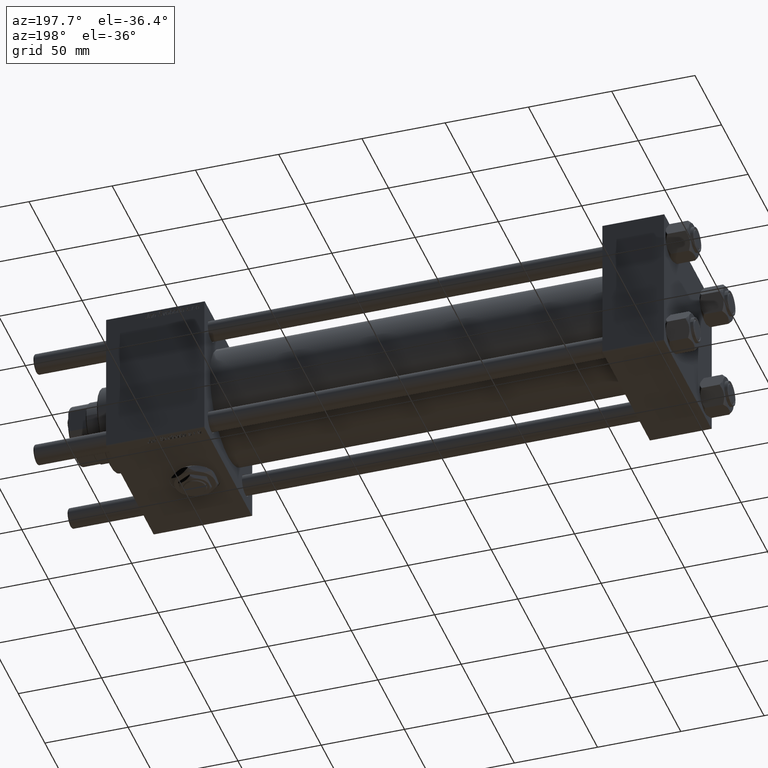
[diagram: clean part render]
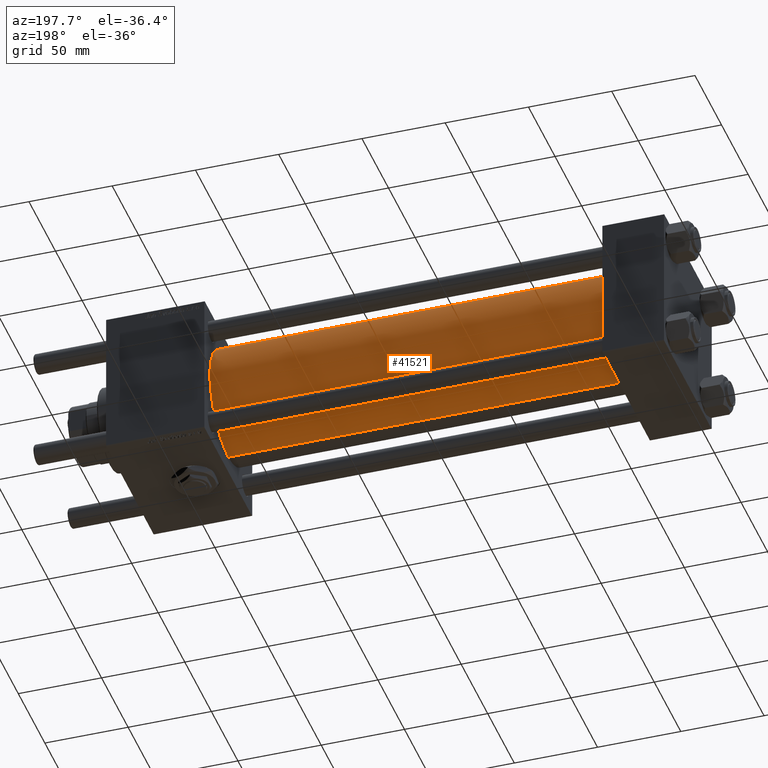
[diagram: same view with one face highlighted and labeled with its STEP entity id]
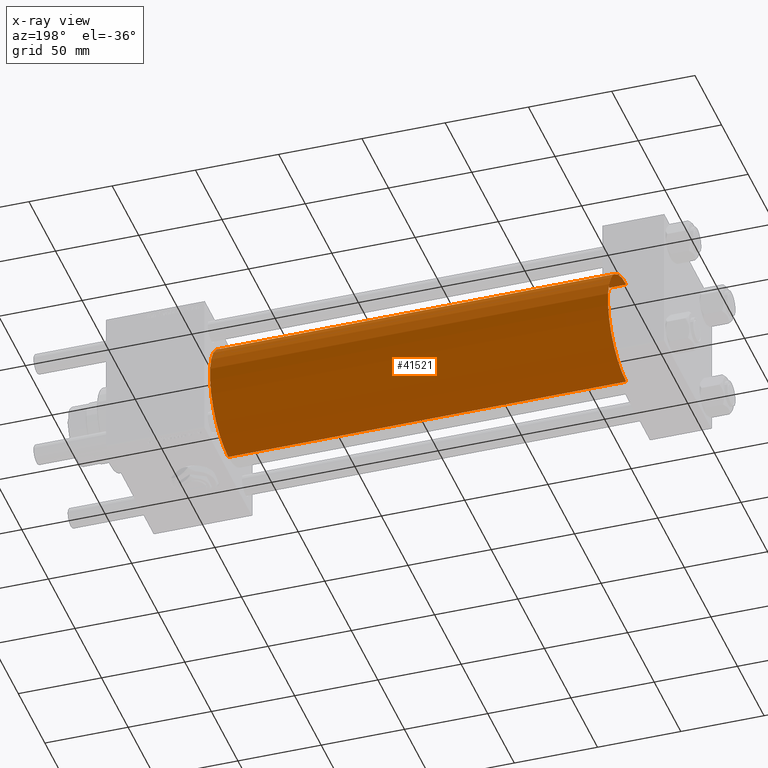
[diagram: x-ray of the same camera — body ghosted, the highlighted face saturated]
A machine part, auxiliary view. The second image highlights one B-rep face of the part: STEP entity #41521.
The next image is the same camera in x-ray: the body ghosted, the highlighted face saturated — about 0% of this face is hidden behind the body in this view.
In plain terms, the highlighted cylindrical surface (partial cylindrical patch) has radius 34.5 mm, axis along (-1, -0, -0).
Its self-contained STEP definition (entity closure, byte-faithful):
#1822 = DIRECTION ( 'NONE',  ( 1.000000000000000000, -0.000000000000000000, 0.000000000000000000 ) ) ;
#3940 = CARTESIAN_POINT ( 'NONE',  ( 275.9999999999999432, -2.602085213965210642E-15, 0.000000000000000000 ) ) ;
#4538 = CARTESIAN_POINT ( 'NONE',  ( 37.00000000000000711, -2.602085213965210642E-15, 34.50000000000000000 ) ) ;
#6390 = VERTEX_POINT ( 'NONE', #4538 ) ;
#6844 = DIRECTION ( 'NONE',  ( 0.000000000000000000, 0.000000000000000000, 1.000000000000000000 ) ) ;
#7107 = ORIENTED_EDGE ( 'NONE', *, *, #19306, .F. ) ;
#10932 = CARTESIAN_POINT ( 'NONE',  ( 37.00000000000000711, 1.622946243093157097E-15, -34.50000000000000000 ) ) ;
#13718 = VERTEX_POINT ( 'NONE', #24622 ) ;
#14596 = CARTESIAN_POINT ( 'NONE',  ( 275.9999999999999432, 1.622946243093157097E-15, -34.50000000000000000 ) ) ;
#14865 = EDGE_LOOP ( 'NONE', ( #30586, #35878, #46920, #7107 ) ) ;
#15215 = AXIS2_PLACEMENT_3D ( 'NONE', #43966, #30657, #44852 ) ;
#18124 = DIRECTION ( 'NONE',  ( -1.000000000000000000, -0.000000000000000000, -0.000000000000000000 ) ) ;
#19040 = DIRECTION ( 'NONE',  ( -1.000000000000000000, -0.000000000000000000, -0.000000000000000000 ) ) ;
#19306 = EDGE_CURVE ( 'NONE', #13718, #6390, #21239, .T. ) ;
#20244 = EDGE_CURVE ( 'NONE', #24314, #13718, #51077, .T. ) ;
#21239 = LINE ( 'NONE', #57286, #38662 ) ;
#24314 = VERTEX_POINT ( 'NONE', #31020 ) ;
#24622 = CARTESIAN_POINT ( 'NONE',  ( 275.9999999999999432, -2.602085213965210642E-15, 34.50000000000000000 ) ) ;
#25453 = AXIS2_PLACEMENT_3D ( 'NONE', #31830, #1822, #6844 ) ;
#26393 = VERTEX_POINT ( 'NONE', #10932 ) ;
#28982 = AXIS2_PLACEMENT_3D ( 'NONE', #3940, #18124, #41199 ) ;
#30586 = ORIENTED_EDGE ( 'NONE', *, *, #20244, .F. ) ;
#30657 = DIRECTION ( 'NONE',  ( 1.000000000000000000, 0.000000000000000000, 0.000000000000000000 ) ) ;
#31020 = CARTESIAN_POINT ( 'NONE',  ( 275.9999999999999432, 1.622946243093157097E-15, -34.50000000000000000 ) ) ;
#31830 = CARTESIAN_POINT ( 'NONE',  ( 37.00000000000000711, -2.602085213965210642E-15, 0.000000000000000000 ) ) ;
#32365 = LINE ( 'NONE', #14596, #58271 ) ;
#35878 = ORIENTED_EDGE ( 'NONE', *, *, #47776, .T. ) ;
#38662 = VECTOR ( 'NONE', #52851, 1000.000000000000000 ) ;
#41199 = DIRECTION ( 'NONE',  ( 0.000000000000000000, 0.000000000000000000, 1.000000000000000000 ) ) ;
#41521 = ADVANCED_FACE ( 'NONE', ( #45061 ), #58031, .T. ) ;
#43966 = CARTESIAN_POINT ( 'NONE',  ( 275.9999999999999432, -2.602085213965210642E-15, 0.000000000000000000 ) ) ;
#44852 = DIRECTION ( 'NONE',  ( 0.000000000000000000, 0.000000000000000000, -1.000000000000000000 ) ) ;
#45061 = FACE_OUTER_BOUND ( 'NONE', #14865, .T. ) ;
#46920 = ORIENTED_EDGE ( 'NONE', *, *, #53938, .T. ) ;
#47776 = EDGE_CURVE ( 'NONE', #24314, #26393, #32365, .T. ) ;
#51077 = CIRCLE ( 'NONE', #15215, 34.50000000000000000 ) ;
#52851 = DIRECTION ( 'NONE',  ( -1.000000000000000000, -0.000000000000000000, -0.000000000000000000 ) ) ;
#53735 = CIRCLE ( 'NONE', #25453, 34.50000000000000000 ) ;
#53938 = EDGE_CURVE ( 'NONE', #26393, #6390, #53735, .T. ) ;
#57286 = CARTESIAN_POINT ( 'NONE',  ( 275.9999999999999432, -2.602085213965210642E-15, 34.50000000000000000 ) ) ;
#58031 = CYLINDRICAL_SURFACE ( 'NONE', #28982, 34.50000000000000000 ) ;
#58271 = VECTOR ( 'NONE', #19040, 1000.000000000000000 ) ;